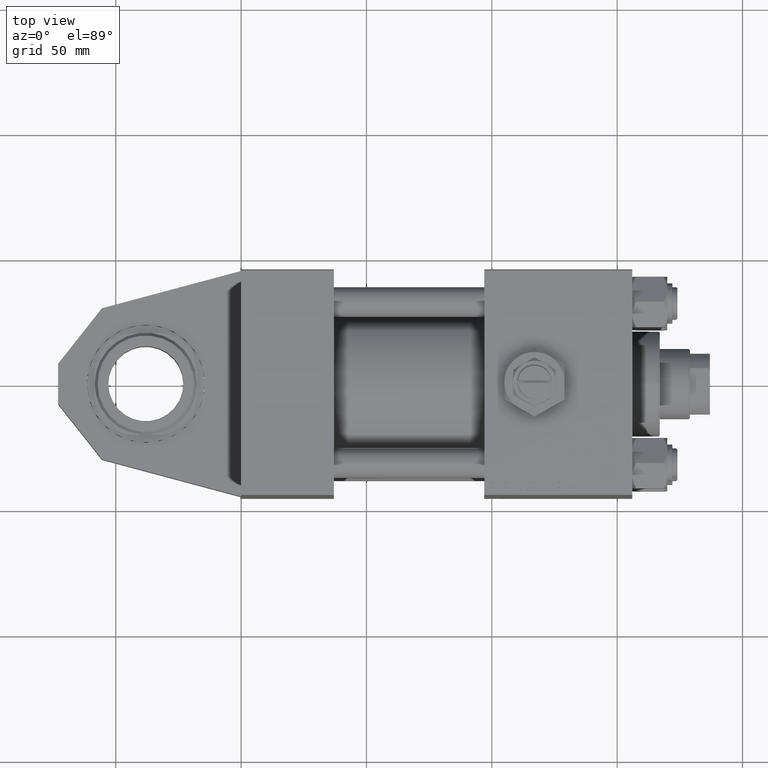
[diagram: clean part render]
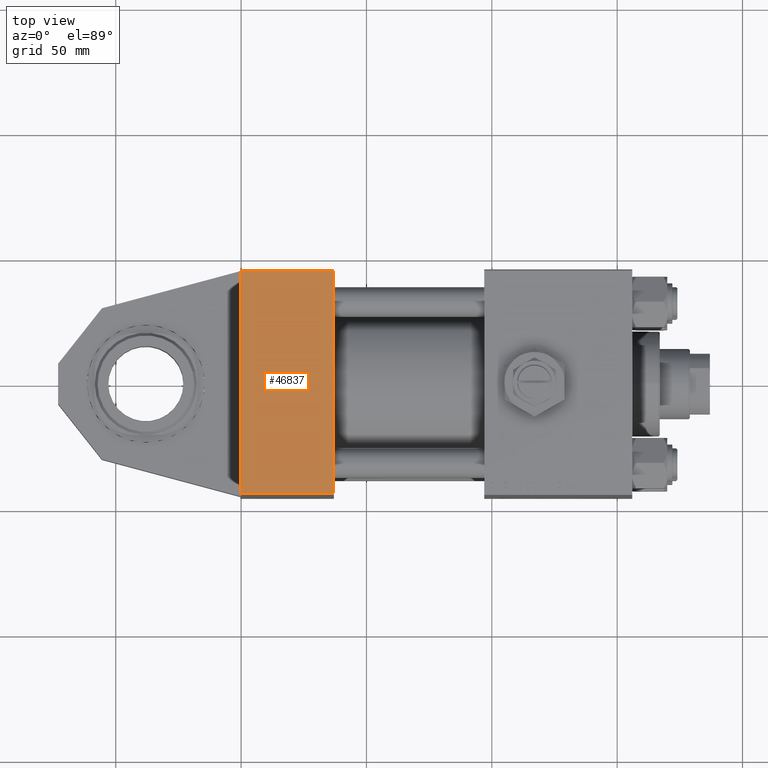
[diagram: same view with one face highlighted and labeled with its STEP entity id]
A machine part, top view. The second image highlights one B-rep face of the part: STEP entity #46837.
In plain terms, the highlighted planar face has unit normal (0, 0, 1).
Its self-contained STEP definition (entity closure, byte-faithful):
#2873 = DIRECTION ( 'NONE',  ( 0.000000000000000000, 0.000000000000000000, -1.000000000000000000 ) ) ;
#3413 = DIRECTION ( 'NONE',  ( -0.000000000000000000, 1.000000000000000000, 0.000000000000000000 ) ) ;
#3696 = CARTESIAN_POINT ( 'NONE',  ( 37.00000000000000000, 44.99999999999998579, 45.00000000000001421 ) ) ;
#5580 = VERTEX_POINT ( 'NONE', #21364 ) ;
#7347 = FACE_OUTER_BOUND ( 'NONE', #17891, .T. ) ;
#12342 = CARTESIAN_POINT ( 'NONE',  ( 37.00000000000000000, 44.99999999999998579, -44.49999999999995737 ) ) ;
#14287 = AXIS2_PLACEMENT_3D ( 'NONE', #39364, #3413, #40132 ) ;
#16444 = VECTOR ( 'NONE', #22591, 1000.000000000000000 ) ;
#17891 = EDGE_LOOP ( 'NONE', ( #26122, #28318, #30048, #19043 ) ) ;
#19043 = ORIENTED_EDGE ( 'NONE', *, *, #24982, .T. ) ;
#19803 = CARTESIAN_POINT ( 'NONE',  ( 37.00000000000000000, 44.99999999999998579, 44.50000000000001421 ) ) ;
#21364 = CARTESIAN_POINT ( 'NONE',  ( 0.000000000000000000, 44.99999999999998579, 44.50000000000001421 ) ) ;
#21419 = VERTEX_POINT ( 'NONE', #41918 ) ;
#22591 = DIRECTION ( 'NONE',  ( -1.000000000000000000, 0.000000000000000000, 0.000000000000000000 ) ) ;
#22632 = CARTESIAN_POINT ( 'NONE',  ( 37.00000000000000000, 44.99999999999998579, 44.50000000000001421 ) ) ;
#23141 = EDGE_CURVE ( 'NONE', #45481, #26623, #31004, .T. ) ;
#23366 = PLANE ( 'NONE',  #14287 ) ;
#24982 = EDGE_CURVE ( 'NONE', #5580, #45481, #45985, .T. ) ;
#26122 = ORIENTED_EDGE ( 'NONE', *, *, #23141, .T. ) ;
#26623 = VERTEX_POINT ( 'NONE', #12342 ) ;
#27056 = LINE ( 'NONE', #51461, #16444 ) ;
#27960 = EDGE_CURVE ( 'NONE', #26623, #21419, #27056, .T. ) ;
#28318 = ORIENTED_EDGE ( 'NONE', *, *, #27960, .T. ) ;
#29708 = VECTOR ( 'NONE', #34439, 1000.000000000000000 ) ;
#30048 = ORIENTED_EDGE ( 'NONE', *, *, #51062, .F. ) ;
#31004 = LINE ( 'NONE', #3696, #45799 ) ;
#34439 = DIRECTION ( 'NONE',  ( 1.000000000000000000, 0.000000000000000000, 0.000000000000000000 ) ) ;
#35155 = LINE ( 'NONE', #42754, #37074 ) ;
#37074 = VECTOR ( 'NONE', #2873, 1000.000000000000000 ) ;
#39364 = CARTESIAN_POINT ( 'NONE',  ( 37.00000000000000000, 44.99999999999998579, 45.00000000000001421 ) ) ;
#40132 = DIRECTION ( 'NONE',  ( 0.000000000000000000, -0.000000000000000000, 1.000000000000000000 ) ) ;
#41918 = CARTESIAN_POINT ( 'NONE',  ( 0.000000000000000000, 44.99999999999998579, -44.49999999999995737 ) ) ;
#42754 = CARTESIAN_POINT ( 'NONE',  ( 0.000000000000000000, 44.99999999999998579, 45.00000000000001421 ) ) ;
#45481 = VERTEX_POINT ( 'NONE', #19803 ) ;
#45799 = VECTOR ( 'NONE', #47523, 1000.000000000000000 ) ;
#45985 = LINE ( 'NONE', #22632, #29708 ) ;
#46837 = ADVANCED_FACE ( 'NONE', ( #7347 ), #23366, .T. ) ;
#47523 = DIRECTION ( 'NONE',  ( 0.000000000000000000, 0.000000000000000000, -1.000000000000000000 ) ) ;
#51062 = EDGE_CURVE ( 'NONE', #5580, #21419, #35155, .T. ) ;
#51461 = CARTESIAN_POINT ( 'NONE',  ( 37.00000000000000000, 44.99999999999998579, -44.49999999999998579 ) ) ;